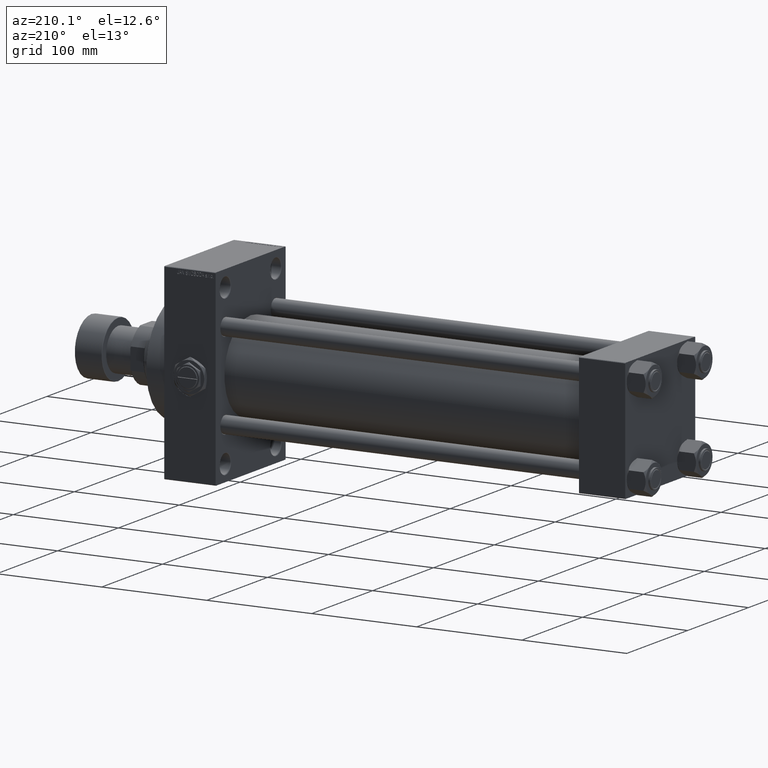
[diagram: clean part render]
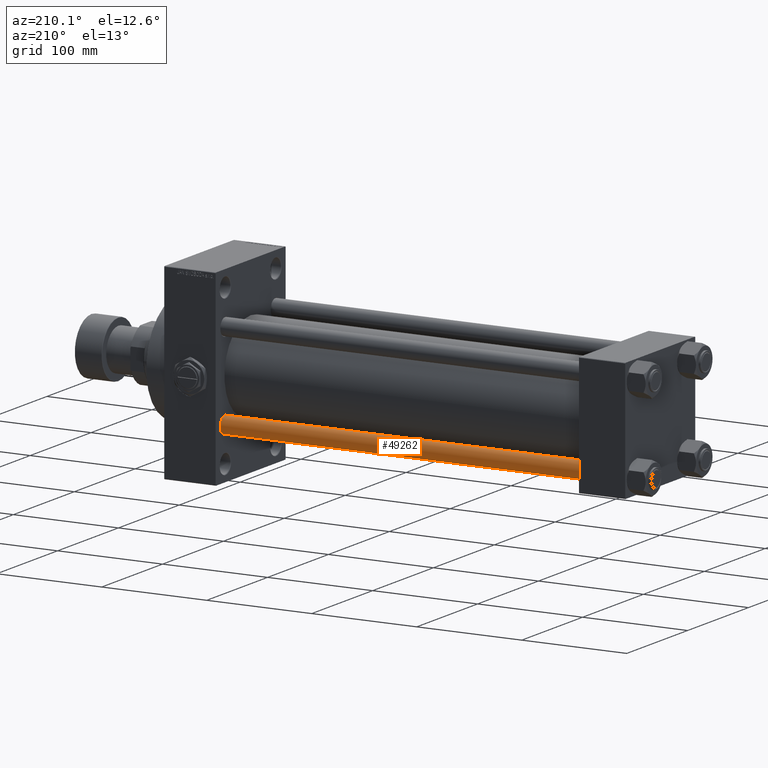
[diagram: same view with one face highlighted and labeled with its STEP entity id]
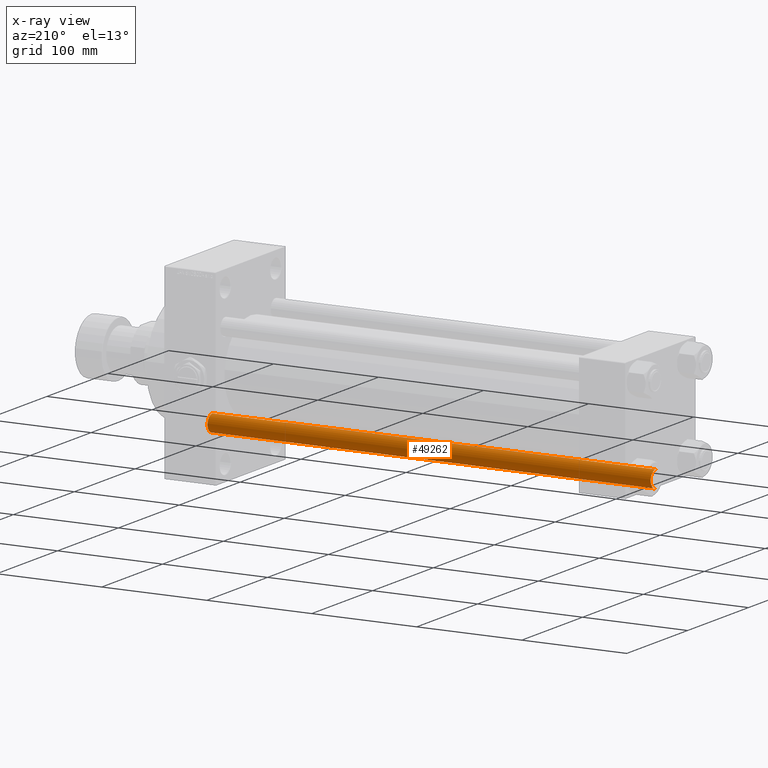
[diagram: x-ray of the same camera — body ghosted, the highlighted face saturated]
A machine part, auxiliary view. The second image highlights one B-rep face of the part: STEP entity #49262.
The next image is the same camera in x-ray: the body ghosted, the highlighted face saturated — about 0% of this face is hidden behind the body in this view.
In plain terms, the highlighted cylindrical surface (edge-blend (fillet) strip) has radius 8 mm, axis along (-1, -0, 0).
Its self-contained STEP definition (entity closure, byte-faithful):
#1729 = DIRECTION ( 'NONE',  ( 1.000000000000000000, 0.000000000000000000, 0.000000000000000000 ) ) ;
#3024 = CYLINDRICAL_SURFACE ( 'NONE', #22428, 8.000000000000000000 ) ;
#4075 = LINE ( 'NONE', #15103, #40923 ) ;
#4202 = CARTESIAN_POINT ( 'NONE',  ( 0.000000000000000000, 0.000000000000000000, 423.0000000000000000 ) ) ;
#4528 = DIRECTION ( 'NONE',  ( -0.000000000000000000, -0.000000000000000000, -1.000000000000000000 ) ) ;
#5574 = VECTOR ( 'NONE', #4528, 1000.000000000000000 ) ;
#7028 = CIRCLE ( 'NONE', #31847, 8.000000000000000000 ) ;
#9378 = VERTEX_POINT ( 'NONE', #21796 ) ;
#9852 = EDGE_CURVE ( 'NONE', #9378, #17290, #47414, .T. ) ;
#11482 = DIRECTION ( 'NONE',  ( -0.000000000000000000, -0.000000000000000000, -1.000000000000000000 ) ) ;
#13595 = EDGE_CURVE ( 'NONE', #30885, #42938, #4075, .T. ) ;
#13863 = EDGE_CURVE ( 'NONE', #9378, #30885, #28115, .T. ) ;
#15103 = CARTESIAN_POINT ( 'NONE',  ( 8.000000000000000000, 9.797174393178823685E-16, 423.0000000000000000 ) ) ;
#15541 = ORIENTED_EDGE ( 'NONE', *, *, #13863, .T. ) ;
#16529 = CARTESIAN_POINT ( 'NONE',  ( 0.000000000000000000, 0.000000000000000000, 0.5000000000003890221 ) ) ;
#17290 = VERTEX_POINT ( 'NONE', #35015 ) ;
#18083 = CARTESIAN_POINT ( 'NONE',  ( 0.000000000000000000, 0.000000000000000000, 422.5000000000002842 ) ) ;
#21796 = CARTESIAN_POINT ( 'NONE',  ( -8.000000000000000000, 0.000000000000000000, 422.5000000000002842 ) ) ;
#22428 = AXIS2_PLACEMENT_3D ( 'NONE', #4202, #11482, #46087 ) ;
#22746 = CARTESIAN_POINT ( 'NONE',  ( 8.000000000000000000, 9.797174393178823685E-16, 0.5000000000003890221 ) ) ;
#25751 = ORIENTED_EDGE ( 'NONE', *, *, #43647, .T. ) ;
#28080 = DIRECTION ( 'NONE',  ( -0.000000000000000000, -0.000000000000000000, 1.000000000000000000 ) ) ;
#28115 = CIRCLE ( 'NONE', #48153, 8.000000000000000000 ) ;
#30885 = VERTEX_POINT ( 'NONE', #46381 ) ;
#31847 = AXIS2_PLACEMENT_3D ( 'NONE', #16529, #28080, #1729 ) ;
#32868 = DIRECTION ( 'NONE',  ( 1.000000000000000000, 0.000000000000000000, 0.000000000000000000 ) ) ;
#33367 = DIRECTION ( 'NONE',  ( 0.000000000000000000, 0.000000000000000000, -1.000000000000000000 ) ) ;
#34675 = DIRECTION ( 'NONE',  ( -0.000000000000000000, -0.000000000000000000, -1.000000000000000000 ) ) ;
#35015 = CARTESIAN_POINT ( 'NONE',  ( -8.000000000000000000, 0.000000000000000000, 0.5000000000003890221 ) ) ;
#36395 = ORIENTED_EDGE ( 'NONE', *, *, #9852, .F. ) ;
#37390 = FACE_OUTER_BOUND ( 'NONE', #43820, .T. ) ;
#39733 = ORIENTED_EDGE ( 'NONE', *, *, #13595, .T. ) ;
#39883 = CARTESIAN_POINT ( 'NONE',  ( -8.000000000000000000, 0.000000000000000000, 423.0000000000000000 ) ) ;
#40923 = VECTOR ( 'NONE', #34675, 1000.000000000000000 ) ;
#42938 = VERTEX_POINT ( 'NONE', #22746 ) ;
#43647 = EDGE_CURVE ( 'NONE', #42938, #17290, #7028, .T. ) ;
#43820 = EDGE_LOOP ( 'NONE', ( #15541, #39733, #25751, #36395 ) ) ;
#46087 = DIRECTION ( 'NONE',  ( -1.000000000000000000, 0.000000000000000000, 0.000000000000000000 ) ) ;
#46381 = CARTESIAN_POINT ( 'NONE',  ( 8.000000000000000000, 9.797174393178823685E-16, 422.5000000000002842 ) ) ;
#47414 = LINE ( 'NONE', #39883, #5574 ) ;
#48153 = AXIS2_PLACEMENT_3D ( 'NONE', #18083, #33367, #32868 ) ;
#49262 = ADVANCED_FACE ( 'NONE', ( #37390 ), #3024, .T. ) ;